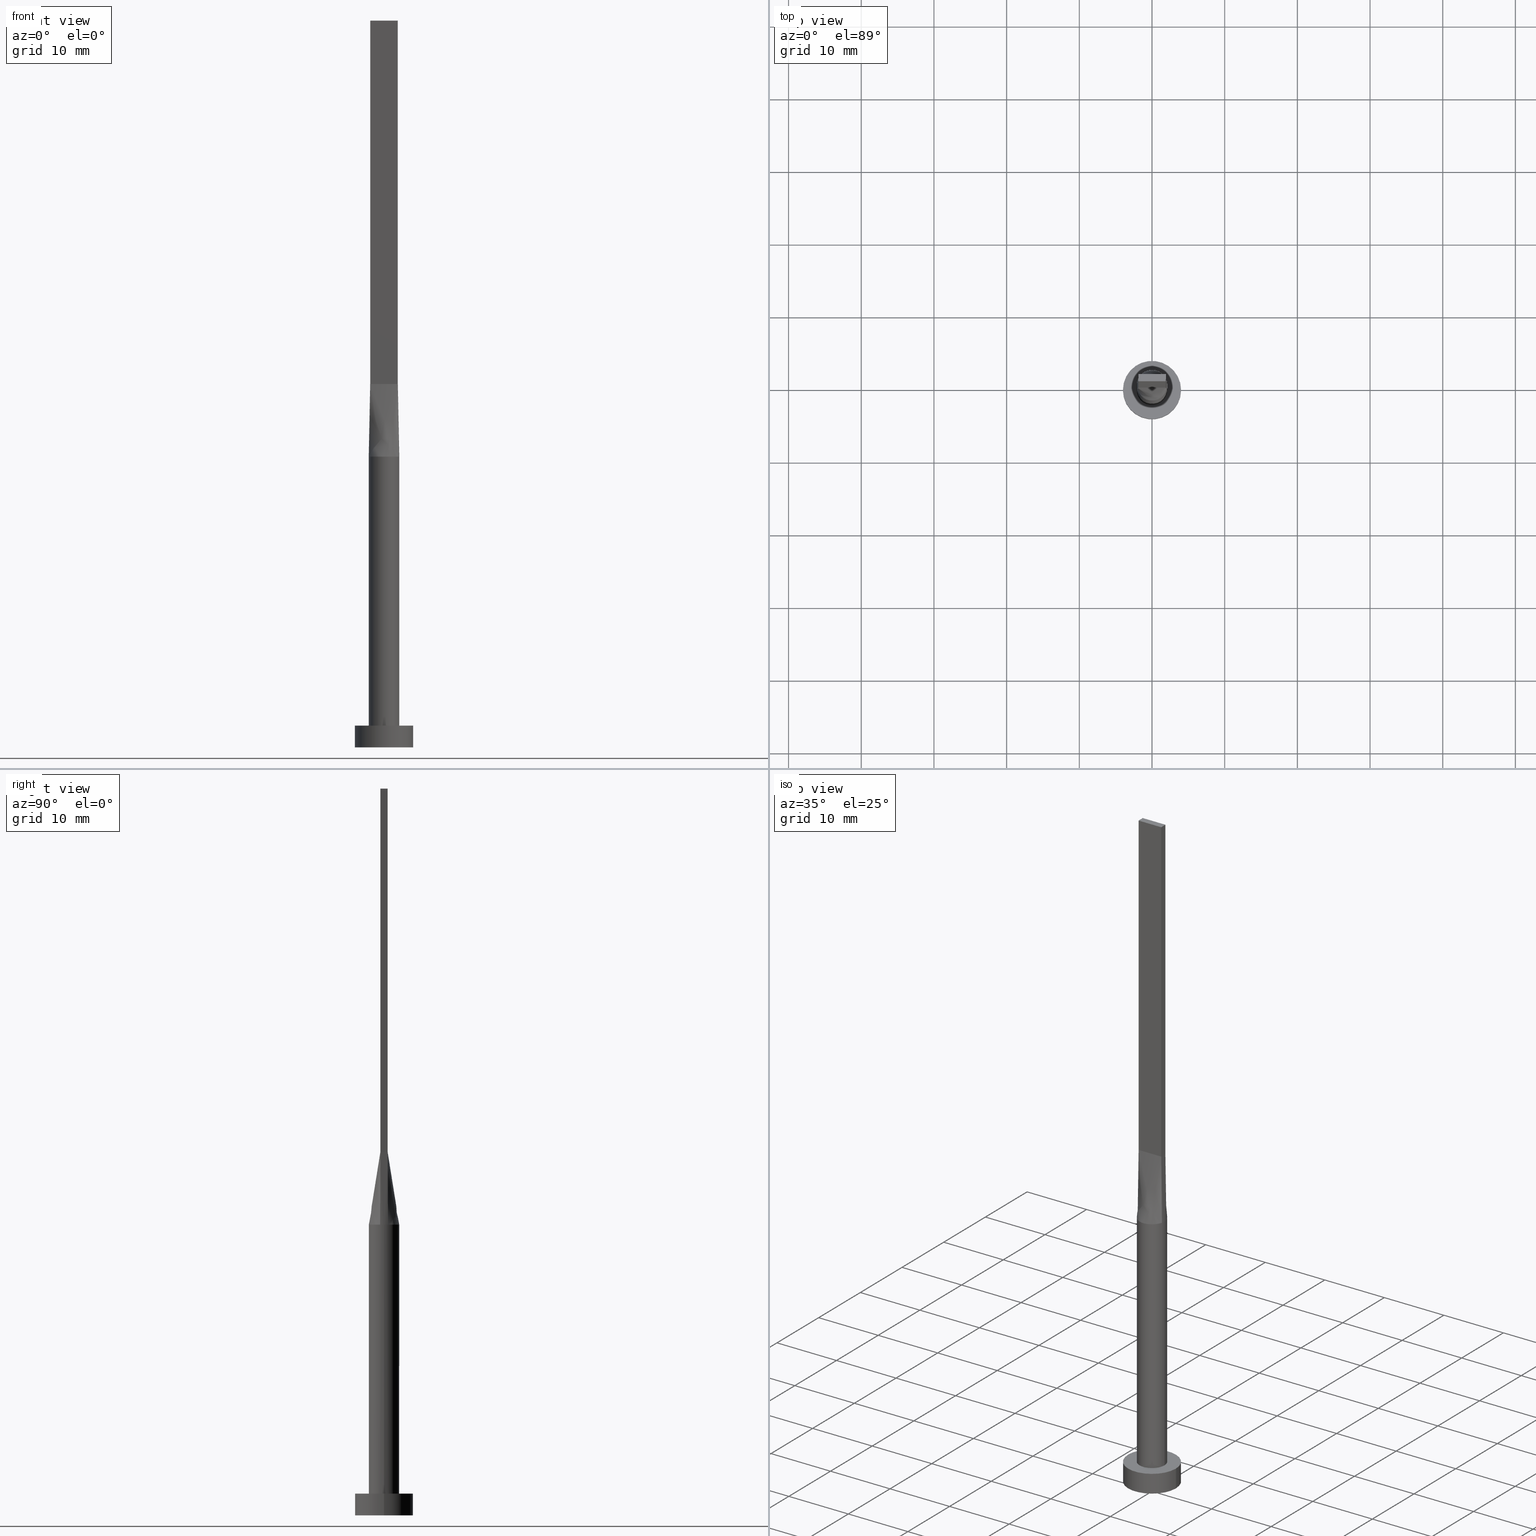
[diagram: canonical four-view strip — front | top / right | iso, engineering-drawing reading convention]
A machine part, canonical four-view strip (front | top / right | iso — engineering-drawing reading convention). The complete STEP part file that produces these views, byte-faithful:
ISO-10303-21;
HEADER;
FILE_DESCRIPTION (( 'STEP AP203' ),
    '1' );
FILE_NAME ('ae48.STEP',
    '2023-02-13T11:25:30',
    ( '' ),
    ( '' ),
    'SwSTEP 2.0',
    'SolidWorks 2019',
    '' );
FILE_SCHEMA (( 'CONFIG_CONTROL_DESIGN' ));
ENDSEC;

DATA;
#1 = VERTEX_POINT ( 'NONE', #328 ) ;
#2 = DIRECTION ( 'NONE',  ( 0.000000000000000000, 0.000000000000000000, 1.000000000000000000 ) ) ;
#3 = VECTOR ( 'NONE', #355, 1000.000000000000000 ) ;
#4 = ADVANCED_FACE ( 'NONE', ( #241 ), #24, .T. ) ;
#5 = PERSON_AND_ORGANIZATION ( #258, #543 ) ;
#6 = CARTESIAN_POINT ( 'NONE',  ( 0.000000000000000000, 0.000000000000000000, 3.000000000000000000 ) ) ;
#7 = VERTEX_POINT ( 'NONE', #194 ) ;
#8 = COORDINATED_UNIVERSAL_TIME_OFFSET ( 1, 0, .AHEAD. ) ;
#9 = CARTESIAN_POINT ( 'NONE',  ( -1.583604922800831760, -1.399063468093435958, 40.00000000000000711 ) ) ;
#10 = CARTESIAN_POINT ( 'NONE',  ( 4.000000000000000000, 4.898587196589412829E-16, 0.000000000000000000 ) ) ;
#11 = ADVANCED_FACE ( 'NONE', ( #208 ), #339, .T. ) ;
#12 = CARTESIAN_POINT ( 'NONE',  ( 0.000000000000000000, 0.000000000000000000, 3.000000000000000000 ) ) ;
#13 = CIRCLE ( 'NONE', #459, 4.000000000000000000 ) ;
#14 = DIRECTION ( 'NONE',  ( -0.000000000000000000, -0.000000000000000000, -1.000000000000000000 ) ) ;
#15 = CARTESIAN_POINT ( 'NONE',  ( 4.000000000000000000, 4.898587196589412829E-16, 3.000000000000000000 ) ) ;
#16 = CARTESIAN_POINT ( 'NONE',  ( 1.021961681204344830, -1.852908961101259910, 39.99999999999999289 ) ) ;
#17 = LINE ( 'NONE', #143, #92 ) ;
#18 = CARTESIAN_POINT ( 'NONE',  ( 0.7916666666666702934, 0.5000000000000002220, 50.00000000000000000 ) ) ;
#19 = CARTESIAN_POINT ( 'NONE',  ( 1.920830191244603746, 0.8725264301372623876, 40.00000000000000000 ) ) ;
#20 = CARTESIAN_POINT ( 'NONE',  ( -1.741666666666667584, -0.4999999999999995559, 50.00000000000000000 ) ) ;
#21 = CARTESIAN_POINT ( 'NONE',  ( 0.2698109971861041290, 2.100000000000000089, 39.99999999999999289 ) ) ;
#22 = CC_DESIGN_APPROVAL ( #209, ( #305 ) ) ;
#23 = ADVANCED_FACE ( 'NONE', ( #115 ), #488, .T. ) ;
#24 = CYLINDRICAL_SURFACE ( 'NONE', #227, 4.000000000000000000 ) ;
#25 = LINE ( 'NONE', #465, #71 ) ;
#26 = VECTOR ( 'NONE', #366, 1000.000000000000000 ) ;
#27 =( LENGTH_UNIT ( ) NAMED_UNIT ( * ) SI_UNIT ( .MILLI., .METRE. ) );
#28 = CARTESIAN_POINT ( 'NONE',  ( 1.899999999999999023, -0.4999999999999997780, 50.00000000000000000 ) ) ;
#29 = ADVANCED_FACE ( 'NONE', ( #266 ), #87, .T. ) ;
#30 = LOCAL_TIME ( 12, 25, 30.00000000000000000, #444 ) ;
#31 = ORIENTED_EDGE ( 'NONE', *, *, #256, .T. ) ;
#32 = LINE ( 'NONE', #300, #100 ) ;
#33 = ORIENTED_EDGE ( 'NONE', *, *, #492, .T. ) ;
#34 = DIRECTION ( 'NONE',  ( 1.000000000000000000, 0.000000000000000000, 0.000000000000000000 ) ) ;
#35 = CARTESIAN_POINT ( 'NONE',  ( 1.899999999999999689, 0.5000000000000002220, 50.00000000000000000 ) ) ;
#36 = ADVANCED_FACE ( 'NONE', ( #486 ), #168, .T. ) ;
#37 = DATE_AND_TIME ( #128, #240 ) ;
#38 = CARTESIAN_POINT ( 'NONE',  ( 1.899999999999999689, -0.1666666666666664354, 50.00000000000000000 ) ) ;
#39 = EDGE_LOOP ( 'NONE', ( #425, #262, #268, #69, #222, #122 ) ) ;
#40 = VECTOR ( 'NONE', #156, 1000.000000000000000 ) ;
#41 = CIRCLE ( 'NONE', #367, 4.000000000000000000 ) ;
#42 = ORIENTED_EDGE ( 'NONE', *, *, #482, .F. ) ;
#43 = CALENDAR_DATE ( 2023, 13, 2 ) ;
#44 = CARTESIAN_POINT ( 'NONE',  ( -1.899999999999999911, -0.4999999999999995559, 100.0000000000000000 ) ) ;
#45 = CARTESIAN_POINT ( 'NONE',  ( -1.583604922800830428, 1.399063468093436402, 40.00000000000000000 ) ) ;
#46 = EDGE_CURVE ( 'NONE', #7, #149, #467, .T. ) ;
#47 = CIRCLE ( 'NONE', #217, 2.100000000000000089 ) ;
#48 = DIRECTION ( 'NONE',  ( -0.000000000000000000, -0.000000000000000000, -1.000000000000000000 ) ) ;
#49 = CARTESIAN_POINT ( 'NONE',  ( -4.000000000000000000, 0.000000000000000000, 3.000000000000000000 ) ) ;
#50 = EDGE_CURVE ( 'NONE', #114, #7, #119, .T. ) ;
#51 = CARTESIAN_POINT ( 'NONE',  ( -1.920830191244604412, -0.8725264301372614995, 40.00000000000000711 ) ) ;
#52 = DIRECTION ( 'NONE',  ( 1.000000000000000000, 0.000000000000000000, 0.000000000000000000 ) ) ;
#53 = CARTESIAN_POINT ( 'NONE',  ( 1.899999999999999689, 0.5000000000000002220, 50.00000000000000000 ) ) ;
#54 = SHAPE_DEFINITION_REPRESENTATION ( #206, #450 ) ;
#55 = CARTESIAN_POINT ( 'NONE',  ( 2.076193315816324603, -0.3621561357411388626, 39.99999999999999289 ) ) ;
#56 = CARTESIAN_POINT ( 'NONE',  ( -2.030856528251558046, -0.5344359284872515214, 40.00000000000000000 ) ) ;
#57 = PLANE ( 'NONE',  #207 ) ;
#58 = CARTESIAN_POINT ( 'NONE',  ( -1.899999999999999911, -0.4999999999999995559, 50.00000000000000000 ) ) ;
#59 = APPROVAL_PERSON_ORGANIZATION ( #396, #311, #104 ) ;
#60 = PLANE ( 'NONE',  #316 ) ;
#61 = VECTOR ( 'NONE', #190, 1000.000000000000114 ) ;
#62 = CARTESIAN_POINT ( 'NONE',  ( 0.1583333333333276638, -0.4999999999999995559, 50.00000000000000000 ) ) ;
#63 = CARTESIAN_POINT ( 'NONE',  ( -1.920830191244604412, 0.8725264301372623876, 40.00000000000000711 ) ) ;
#64 = CARTESIAN_POINT ( 'NONE',  ( 2.100000000000000089, 2.571758278209441957E-16, 40.00000000000000000 ) ) ;
#65 = ORIENTED_EDGE ( 'NONE', *, *, #75, .T. ) ;
#66 = DIRECTION ( 'NONE',  ( -1.000000000000000000, 0.000000000000000000, 0.000000000000000000 ) ) ;
#67 = CARTESIAN_POINT ( 'NONE',  ( 1.235326090059014614, 1.714395692508636770, 40.00000000000002132 ) ) ;
#68 = ADVANCED_FACE ( 'NONE', ( #334 ), #539, .T. ) ;
#69 = ORIENTED_EDGE ( 'NONE', *, *, #131, .F. ) ;
#70 = CARTESIAN_POINT ( 'NONE',  ( -1.899999999999999689, 0.5000000000000002220, 50.00000000000000000 ) ) ;
#71 = VECTOR ( 'NONE', #203, 1000.000000000000000 ) ;
#72 = DIRECTION ( 'NONE',  ( -2.168404344971009361E-16, -1.000000000000000000, 0.000000000000000000 ) ) ;
#73 = PLANE ( 'NONE',  #148 ) ;
#74 = EDGE_LOOP ( 'NONE', ( #415, #272 ) ) ;
#75 = EDGE_CURVE ( 'NONE', #76, #484, #466, .T. ) ;
#76 = VERTEX_POINT ( 'NONE', #455 ) ;
#77 = CARTESIAN_POINT ( 'NONE',  ( -1.965428264125778979, -0.5172179642436255387, 45.00000000000000000 ) ) ;
#78 = CARTESIAN_POINT ( 'NONE',  ( 1.741666666666667362, 0.5000000000000002220, 50.00000000000000711 ) ) ;
#79 = ORIENTED_EDGE ( 'NONE', *, *, #144, .T. ) ;
#80 = ORIENTED_EDGE ( 'NONE', *, *, #383, .T. ) ;
#81 = CARTESIAN_POINT ( 'NONE',  ( 1.899999999999999467, 0.3333333333333335369, 50.00000000000000000 ) ) ;
#82 = VERTEX_POINT ( 'NONE', #58 ) ;
#83 = CARTESIAN_POINT ( 'NONE',  ( 2.030856528251557602, 0.5344359284872527427, 40.00000000000000000 ) ) ;
#84 = APPLICATION_PROTOCOL_DEFINITION ( 'international standard', 'config_control_design', 1994, #275 ) ;
#85 = DIRECTION ( 'NONE',  ( 1.000000000000000000, 0.000000000000000000, -0.000000000000000000 ) ) ;
#86 = VERTEX_POINT ( 'NONE', #210 ) ;
#87 = CYLINDRICAL_SURFACE ( 'NONE', #246, 2.100000000000000089 ) ;
#88 = VERTEX_POINT ( 'NONE', #151 ) ;
#89 = COORDINATED_UNIVERSAL_TIME_OFFSET ( 1, 0, .AHEAD. ) ;
#90 = CARTESIAN_POINT ( 'NONE',  ( 1.719043754744862040, 1.223020672007445464, 40.00000000000001421 ) ) ;
#91 = LINE ( 'NONE', #394, #3 ) ;
#92 = VECTOR ( 'NONE', #576, 1000.000000000000114 ) ;
#93 = ORIENTED_EDGE ( 'NONE', *, *, #75, .F. ) ;
#94 = CC_DESIGN_DATE_AND_TIME_ASSIGNMENT ( #533, #230, ( #305 ) ) ;
#95 = ORIENTED_EDGE ( 'NONE', *, *, #50, .F. ) ;
#96 = CARTESIAN_POINT ( 'NONE',  ( 2.030996101999494652, 0.5344731476277209126, 40.00000000000000000 ) ) ;
#97 = CARTESIAN_POINT ( 'NONE',  ( 0.000000000000000000, 0.000000000000000000, 40.00000000000000000 ) ) ;
#98 = APPROVAL_ROLE ( '' ) ;
#99 = EDGE_CURVE ( 'NONE', #149, #567, #421, .T. ) ;
#100 = VECTOR ( 'NONE', #72, 1000.000000000000000 ) ;
#101 = COORDINATED_UNIVERSAL_TIME_OFFSET ( 1, 0, .AHEAD. ) ;
#102 = CARTESIAN_POINT ( 'NONE',  ( -2.100000000000000977, -0.1811271572287798393, 40.00000000000000000 ) ) ;
#103 = CARTESIAN_POINT ( 'NONE',  ( -2.030856528251557602, 0.5344359284872521876, 40.00000000000000000 ) ) ;
#104 = APPROVAL_ROLE ( '' ) ;
#105 = FACE_OUTER_BOUND ( 'NONE', #501, .T. ) ;
#106 = CARTESIAN_POINT ( 'NONE',  ( -1.899999999999999689, -0.1666666666666662133, 50.00000000000000000 ) ) ;
#107 = CARTESIAN_POINT ( 'NONE',  ( -1.719043754744862484, -1.223020672007444798, 40.00000000000000000 ) ) ;
#108 = CC_DESIGN_APPROVAL ( #311, ( #181 ) ) ;
#109 = CARTESIAN_POINT ( 'NONE',  ( -2.076193315816324603, 0.3621561357411381965, 39.99999999999999289 ) ) ;
#110 = ORIENTED_EDGE ( 'NONE', *, *, #50, .T. ) ;
#111 = CARTESIAN_POINT ( 'NONE',  ( -1.987786580065029174, 0.6981017315960602598, 39.99999999999999289 ) ) ;
#112 = CARTESIAN_POINT ( 'NONE',  ( -1.899999999999999911, -0.4999999999999995559, 50.00000000000000000 ) ) ;
#113 = LINE ( 'NONE', #348, #439 ) ;
#114 = VERTEX_POINT ( 'NONE', #292 ) ;
#115 = FACE_OUTER_BOUND ( 'NONE', #497, .T. ) ;
#116 = DIRECTION ( 'NONE',  ( -0.000000000000000000, -0.000000000000000000, -1.000000000000000000 ) ) ;
#117 = APPROVAL_PERSON_ORGANIZATION ( #430, #209, #221 ) ;
#118 = EDGE_CURVE ( 'NONE', #294, #76, #17, .T. ) ;
#119 = CIRCLE ( 'NONE', #495, 2.100000000000000089 ) ;
#120 = AXIS2_PLACEMENT_3D ( 'NONE', #97, #375, #66 ) ;
#121 = CIRCLE ( 'NONE', #525, 2.100000000000000089 ) ;
#122 = ORIENTED_EDGE ( 'NONE', *, *, #243, .F. ) ;
#123 = CARTESIAN_POINT ( 'NONE',  ( 1.899999999999999689, 0.5000000000000002220, 100.0000000000000000 ) ) ;
#124 = APPLICATION_PROTOCOL_DEFINITION ( 'international standard', 'config_control_design', 1994, #244 ) ;
#125 = ORIENTED_EDGE ( 'NONE', *, *, #327, .T. ) ;
#126 = ORIENTED_EDGE ( 'NONE', *, *, #170, .T. ) ;
#127 = CARTESIAN_POINT ( 'NONE',  ( 1.987786580065029174, 0.6981017315960605929, 40.00000000000000000 ) ) ;
#128 = CALENDAR_DATE ( 2023, 13, 2 ) ;
#129 = ORIENTED_EDGE ( 'NONE', *, *, #500, .T. ) ;
#130 = VECTOR ( 'NONE', #322, 1000.000000000000000 ) ;
#131 = EDGE_CURVE ( 'NONE', #553, #567, #91, .T. ) ;
#132 = PERSON_AND_ORGANIZATION ( #258, #543 ) ;
#133 = DIRECTION ( 'NONE',  ( 0.000000000000000000, 0.000000000000000000, 1.000000000000000000 ) ) ;
#134 = EDGE_LOOP ( 'NONE', ( #390, #395, #93, #343 ) ) ;
#135 = CARTESIAN_POINT ( 'NONE',  ( 1.266666666666669494, 0.5000000000000002220, 50.00000000000000711 ) ) ;
#136 = ORIENTED_EDGE ( 'NONE', *, *, #277, .F. ) ;
#137 = EDGE_CURVE ( 'NONE', #176, #82, #273, .T. ) ;
#138 = DIRECTION ( 'NONE',  ( -0.000000000000000000, -0.000000000000000000, -1.000000000000000000 ) ) ;
#139 = AXIS2_PLACEMENT_3D ( 'NONE', #498, #279, #448 ) ;
#140 = APPROVAL_DATE_TIME ( #536, #311 ) ;
#141 = PLANE ( 'NONE',  #232 ) ;
#142 = CALENDAR_DATE ( 2023, 13, 2 ) ;
#143 = CARTESIAN_POINT ( 'NONE',  ( 1.965428264125778535, 0.5172179642436265379, 45.00000000000000000 ) ) ;
#144 = EDGE_CURVE ( 'NONE', #307, #299, #183, .T. ) ;
#145 = DIRECTION ( 'NONE',  ( 0.000000000000000000, 0.000000000000000000, 1.000000000000000000 ) ) ;
#146 = CARTESIAN_POINT ( 'NONE',  ( 0.000000000000000000, 0.000000000000000000, 3.000000000000000000 ) ) ;
#147 = CARTESIAN_POINT ( 'NONE',  ( -1.108333333333330062, 0.5000000000000002220, 50.00000000000000000 ) ) ;
#148 = AXIS2_PLACEMENT_3D ( 'NONE', #261, #474, #479 ) ;
#149 = VERTEX_POINT ( 'NONE', #276 ) ;
#150 = CARTESIAN_POINT ( 'NONE',  ( -1.021961681204347050, -1.852908961101258578, 39.99999999999998579 ) ) ;
#151 = CARTESIAN_POINT ( 'NONE',  ( -1.899999999999999689, 0.5000000000000002220, 100.0000000000000000 ) ) ;
#152 = CARTESIAN_POINT ( 'NONE',  ( -0.6333333333333288628, 0.5000000000000002220, 50.00000000000000000 ) ) ;
#153 = CARTESIAN_POINT ( 'NONE',  ( -2.076193315816325491, -0.3621561357411375859, 40.00000000000000000 ) ) ;
#154 = CARTESIAN_POINT ( 'NONE',  ( -1.583333333333331927, 0.5000000000000002220, 50.00000000000000000 ) ) ;
#155 = CARTESIAN_POINT ( 'NONE',  ( 2.100000000000000089, -0.1811271572287806442, 40.00000000000000711 ) ) ;
#156 = DIRECTION ( 'NONE',  ( -0.000000000000000000, -0.000000000000000000, -1.000000000000000000 ) ) ;
#157 = CARTESIAN_POINT ( 'NONE',  ( 0.7916666666666622998, -0.4999999999999996669, 50.00000000000000000 ) ) ;
#158 = PRODUCT ( 'ae48', 'ae48', '', ( #182 ) ) ;
#159 = DIRECTION ( 'NONE',  ( 0.01308445504626045038, -0.003443277643752733208, 0.9999084662483913588 ) ) ;
#160 = DIRECTION ( 'NONE',  ( -1.000000000000000000, 0.000000000000000000, 0.000000000000000000 ) ) ;
#161 = ADVANCED_FACE ( 'NONE', ( #535, #528 ), #141, .T. ) ;
#162 = CARTESIAN_POINT ( 'NONE',  ( -1.899999999999999689, 0.5000000000000002220, 50.00000000000000000 ) ) ;
#163 = AXIS2_PLACEMENT_3D ( 'NONE', #380, #513, #253 ) ;
#164 = AXIS2_PLACEMENT_3D ( 'NONE', #12, #547, #426 ) ;
#165 = CARTESIAN_POINT ( 'NONE',  ( -2.100000000000000089, -1.080980291041873360E-16, 40.00000000000000711 ) ) ;
#166 = CARTESIAN_POINT ( 'NONE',  ( 0.000000000000000000, 0.000000000000000000, 100.0000000000000000 ) ) ;
#167 = EDGE_LOOP ( 'NONE', ( #405, #173, #267, #431 ) ) ;
#168 = PLANE ( 'NONE',  #192 ) ;
#169 = PERSON_AND_ORGANIZATION_ROLE ( 'design_owner' ) ;
#170 = EDGE_CURVE ( 'NONE', #462, #515, #180, .T. ) ;
#171 = LOCAL_TIME ( 12, 25, 30.00000000000000000, #313 ) ;
#172 = DIRECTION ( 'NONE',  ( -0.000000000000000000, -0.000000000000000000, -1.000000000000000000 ) ) ;
#173 = ORIENTED_EDGE ( 'NONE', *, *, #537, .F. ) ;
#174 = VECTOR ( 'NONE', #260, 1000.000000000000000 ) ;
#175 = ORIENTED_EDGE ( 'NONE', *, *, #530, .T. ) ;
#176 = VERTEX_POINT ( 'NONE', #315 ) ;
#177 = ADVANCED_FACE ( 'NONE', ( #445 ), #278, .F. ) ;
#178 = CARTESIAN_POINT ( 'NONE',  ( 1.920830191244603302, -0.8725264301372632758, 40.00000000000001421 ) ) ;
#179 = APPROVAL_STATUS ( 'not_yet_approved' ) ;
#180 = LINE ( 'NONE', #317, #560 ) ;
#181 = PRODUCT_DEFINITION_FORMATION_WITH_SPECIFIED_SOURCE ( 'LIBOVOLN�', '', #158, .NOT_KNOWN. ) ;
#182 = MECHANICAL_CONTEXT ( 'NONE', #244, 'mechanical' ) ;
#183 = LINE ( 'NONE', #397, #470 ) ;
#184 = SECURITY_CLASSIFICATION_LEVEL ( 'unclassified' ) ;
#185 = CARTESIAN_POINT ( 'NONE',  ( 0.5389299406762297906, 2.046272663899431077, 40.00000000000000000 ) ) ;
#186 = APPROVAL_STATUS ( 'not_yet_approved' ) ;
#187 = CARTESIAN_POINT ( 'NONE',  ( 1.899999999999999689, -0.3333333333333330928, 50.00000000000000000 ) ) ;
#188 = ADVANCED_FACE ( 'NONE', ( #271 ), #504, .T. ) ;
#189 = LINE ( 'NONE', #238, #345 ) ;
#190 = DIRECTION ( 'NONE',  ( -0.01308445504626047293, 0.003443277643752830786, 0.9999084662483913588 ) ) ;
#191 = CARTESIAN_POINT ( 'NONE',  ( -1.108333333333336501, -0.4999999999999995559, 50.00000000000000000 ) ) ;
#192 = AXIS2_PLACEMENT_3D ( 'NONE', #166, #526, #212 ) ;
#193 = CALENDAR_DATE ( 2023, 13, 2 ) ;
#194 = CARTESIAN_POINT ( 'NONE',  ( 2.100000000000000089, 3.372022381799045987E-17, 40.00000000000000711 ) ) ;
#195 = CARTESIAN_POINT ( 'NONE',  ( -1.899999999999999689, 0.5000000000000002220, 50.00000000000000000 ) ) ;
#196 = DIRECTION ( 'NONE',  ( 5.706327223607920020E-17, 1.000000000000000000, -0.000000000000000000 ) ) ;
#197 = CC_DESIGN_PERSON_AND_ORGANIZATION_ASSIGNMENT ( #223, #388, ( #305 ) ) ;
#198 = CARTESIAN_POINT ( 'NONE',  ( 0.6333333333333286408, -0.4999999999999995559, 50.00000000000000000 ) ) ;
#199 = DIRECTION ( 'NONE',  ( 0.000000000000000000, 0.000000000000000000, 1.000000000000000000 ) ) ;
#200 = FACE_OUTER_BOUND ( 'NONE', #329, .T. ) ;
#201 = CARTESIAN_POINT ( 'NONE',  ( 1.719043754744862040, 1.223020672007445464, 40.00000000000001421 ) ) ;
#202 = EDGE_LOOP ( 'NONE', ( #440, #569, #265, #563 ) ) ;
#203 = DIRECTION ( 'NONE',  ( -1.000000000000000000, 0.000000000000000000, 0.000000000000000000 ) ) ;
#204 = DIRECTION ( 'NONE',  ( 2.168404344971009361E-16, 1.000000000000000000, 0.000000000000000000 ) ) ;
#205 = CARTESIAN_POINT ( 'NONE',  ( -0.2698109971861040179, 2.100000000000000089, 40.00000000000000711 ) ) ;
#206 = PRODUCT_DEFINITION_SHAPE ( 'NONE', 'NONE',  #305 ) ;
#207 = AXIS2_PLACEMENT_3D ( 'NONE', #242, #291, #374 ) ;
#208 = FACE_OUTER_BOUND ( 'NONE', #225, .T. ) ;
#209 = APPROVAL ( #531, 'NEUR�EN�' ) ;
#210 = CARTESIAN_POINT ( 'NONE',  ( -2.031004407172260162, -0.5344754071304557153, 40.00000000000000000 ) ) ;
#211 = ORIENTED_EDGE ( 'NONE', *, *, #318, .T. ) ;
#212 = DIRECTION ( 'NONE',  ( 1.000000000000000000, 0.000000000000000000, -0.000000000000000000 ) ) ;
#213 = LINE ( 'NONE', #340, #280 ) ;
#214 =( NAMED_UNIT ( * ) SI_UNIT ( $, .STERADIAN. ) SOLID_ANGLE_UNIT ( ) );
#215 = DIRECTION ( 'NONE',  ( -0.000000000000000000, -0.000000000000000000, -1.000000000000000000 ) ) ;
#216 = CC_DESIGN_APPROVAL ( #337, ( #424 ) ) ;
#217 = AXIS2_PLACEMENT_3D ( 'NONE', #146, #371, #52 ) ;
#218 = ORIENTED_EDGE ( 'NONE', *, *, #511, .F. ) ;
#219 = CARTESIAN_POINT ( 'NONE',  ( 0.000000000000000000, 0.000000000000000000, 0.000000000000000000 ) ) ;
#220 = PRODUCT_RELATED_PRODUCT_CATEGORY ( 'detail', '', ( #158 ) ) ;
#221 = APPROVAL_ROLE ( '' ) ;
#222 = ORIENTED_EDGE ( 'NONE', *, *, #256, .F. ) ;
#223 = PERSON_AND_ORGANIZATION ( #258, #543 ) ;
#224 = EDGE_LOOP ( 'NONE', ( #411, #79, #505, #443 ) ) ;
#225 = EDGE_LOOP ( 'NONE', ( #436, #512, #211, #175 ) ) ;
#226 = DIRECTION ( 'NONE',  ( 1.000000000000000000, 0.000000000000000000, 0.000000000000000000 ) ) ;
#227 = AXIS2_PLACEMENT_3D ( 'NONE', #377, #14, #160 ) ;
#228 = EDGE_CURVE ( 'NONE', #553, #86, #401, .T. ) ;
#229 = CIRCLE ( 'NONE', #507, 4.000000000000000000 ) ;
#230 = DATE_TIME_ROLE ( 'creation_date' ) ;
#231 = PERSON_AND_ORGANIZATION_ROLE ( 'creator' ) ;
#232 = AXIS2_PLACEMENT_3D ( 'NONE', #6, #2, #489 ) ;
#233 = ADVANCED_FACE ( 'NONE', ( #469 ), #73, .F. ) ;
#234 = PERSON_AND_ORGANIZATION ( #258, #543 ) ;
#235 = DIRECTION ( 'NONE',  ( -0.000000000000000000, -0.000000000000000000, -1.000000000000000000 ) ) ;
#236 = CARTESIAN_POINT ( 'NONE',  ( -1.741666666666665808, 0.5000000000000002220, 50.00000000000000000 ) ) ;
#237 = CARTESIAN_POINT ( 'NONE',  ( -1.987786580065029840, -0.6981017315960599268, 39.99999999999999289 ) ) ;
#238 = CARTESIAN_POINT ( 'NONE',  ( -1.899999999999999689, 0.5000000000000002220, 50.00000000000000000 ) ) ;
#239 = DIRECTION ( 'NONE',  ( -2.168404344971008868E-16, 1.000000000000000000, -0.000000000000000000 ) ) ;
#240 = LOCAL_TIME ( 12, 25, 30.00000000000000000, #89 ) ;
#241 = FACE_OUTER_BOUND ( 'NONE', #224, .T. ) ;
#242 = CARTESIAN_POINT ( 'NONE',  ( 1.899999999999999689, 0.5000000000000002220, 100.0000000000000000 ) ) ;
#243 = EDGE_CURVE ( 'NONE', #294, #509, #285, .T. ) ;
#244 = APPLICATION_CONTEXT ( 'configuration controlled 3d designs of mechanical parts and assemblies' ) ;
#245 = CARTESIAN_POINT ( 'NONE',  ( 0.000000000000000000, 0.000000000000000000, 3.000000000000000000 ) ) ;
#246 = AXIS2_PLACEMENT_3D ( 'NONE', #573, #138, #429 ) ;
#247 = AXIS2_PLACEMENT_3D ( 'NONE', #254, #404, #204 ) ;
#248 = ORIENTED_EDGE ( 'NONE', *, *, #269, .F. ) ;
#249 = CARTESIAN_POINT ( 'NONE',  ( 0.3166666666666613228, -0.4999999999999995559, 50.00000000000000000 ) ) ;
#250 = CARTESIAN_POINT ( 'NONE',  ( 1.583604922800830428, 1.399063468093436624, 40.00000000000000000 ) ) ;
#251 = B_SPLINE_SURFACE_WITH_KNOTS ( 'NONE', 3, 1, ( 
 ( #506, #463 ),
 ( #423, #78 ),
 ( #566, #295 ),
 ( #90, #135 ),
 ( #250, #552 ),
 ( #413, #18 ),
 ( #369, #499 ),
 ( #185, #325 ),
 ( #524, #289 ),
 ( #551, #372 ),
 ( #412, #508 ),
 ( #417, #152 ),
 ( #410, #461 ),
 ( #321, #147 ),
 ( #368, #281 ),
 ( #63, #154 ),
 ( #111, #236 ),
 ( #103, #297 ) ),
 .UNSPECIFIED., .F., .F., .F.,
 ( 4, 2, 2, 2, 2, 2, 2, 2, 4 ),
 ( 2, 2 ),
 ( 0.000000000000000000, 0.1250000000000000278, 0.2500000000000000555, 0.3750000000000001110, 0.5000000000000000000, 0.6250000000000000000, 0.7500000000000000000, 0.8750000000000001110, 1.000000000000000000 ),
 ( 0.000000000000000000, 1.000000000000000000 ),
 .UNSPECIFIED. ) ;
#252 = CARTESIAN_POINT ( 'NONE',  ( -2.100000000000000089, 0.1811271572287804221, 40.00000000000000711 ) ) ;
#253 = DIRECTION ( 'NONE',  ( -1.000000000000000000, 0.000000000000000000, 0.000000000000000000 ) ) ;
#254 = CARTESIAN_POINT ( 'NONE',  ( -1.899999999999999689, 0.5000000000000002220, 100.0000000000000000 ) ) ;
#255 = CARTESIAN_POINT ( 'NONE',  ( 1.021961681204346606, 1.852908961101259244, 40.00000000000000711 ) ) ;
#256 = EDGE_CURVE ( 'NONE', #509, #553, #309, .T. ) ;
#257 = ORIENTED_EDGE ( 'NONE', *, *, #352, .T. ) ;
#258 = PERSON ( 'NEUR�EN�', 'NEUR�EN�', 'NEUR�EN�', ('NEUR�EN�'), ('NEUR�EN�'), ('NEUR�EN�') ) ;
#259 = AXIS2_PLACEMENT_3D ( 'NONE', #332, #284, #503 ) ;
#260 = DIRECTION ( 'NONE',  ( -0.000000000000000000, -0.000000000000000000, -1.000000000000000000 ) ) ;
#261 = CARTESIAN_POINT ( 'NONE',  ( 1.899999999999999023, -0.4999999999999997780, 100.0000000000000000 ) ) ;
#262 = ORIENTED_EDGE ( 'NONE', *, *, #46, .T. ) ;
#263 = DIRECTION ( 'NONE',  ( 0.000000000000000000, 0.000000000000000000, 1.000000000000000000 ) ) ;
#264 = CARTESIAN_POINT ( 'NONE',  ( -2.030856528251557602, 0.5344359284872521876, 40.00000000000000000 ) ) ;
#265 = ORIENTED_EDGE ( 'NONE', *, *, #492, .F. ) ;
#266 = FACE_OUTER_BOUND ( 'NONE', #39, .T. ) ;
#267 = ORIENTED_EDGE ( 'NONE', *, *, #170, .F. ) ;
#268 = ORIENTED_EDGE ( 'NONE', *, *, #99, .T. ) ;
#269 = EDGE_CURVE ( 'NONE', #176, #462, #458, .T. ) ;
#270 = CARTESIAN_POINT ( 'NONE',  ( 1.266666666666663277, -0.4999999999999997780, 50.00000000000000000 ) ) ;
#271 = FACE_OUTER_BOUND ( 'NONE', #351, .T. ) ;
#272 = ORIENTED_EDGE ( 'NONE', *, *, #520, .F. ) ;
#273 = LINE ( 'NONE', #44, #428 ) ;
#274 = CIRCLE ( 'NONE', #164, 4.000000000000000000 ) ;
#275 = APPLICATION_CONTEXT ( 'configuration controlled 3d designs of mechanical parts and assemblies' ) ;
#276 = CARTESIAN_POINT ( 'NONE',  ( 2.100000000000000089, 2.571758278209441957E-16, 3.000000000000000000 ) ) ;
#277 = EDGE_CURVE ( 'NONE', #484, #82, #189, .T. ) ;
#278 = PLANE ( 'NONE',  #580 ) ;
#279 = DIRECTION ( 'NONE',  ( 0.000000000000000000, 0.000000000000000000, 1.000000000000000000 ) ) ;
#280 = VECTOR ( 'NONE', #159, 1000.000000000000114 ) ;
#281 = CARTESIAN_POINT ( 'NONE',  ( -1.266666666666664165, 0.5000000000000002220, 50.00000000000000000 ) ) ;
#282 = CALENDAR_DATE ( 2023, 13, 2 ) ;
#283 = CARTESIAN_POINT ( 'NONE',  ( 0.000000000000000000, 0.000000000000000000, 40.00000000000000000 ) ) ;
#284 = DIRECTION ( 'NONE',  ( 0.000000000000000000, 0.000000000000000000, 1.000000000000000000 ) ) ;
#285 = B_SPLINE_CURVE_WITH_KNOTS ( 'NONE', 3,
 ( #427, #127, #19, #201, #298, #67, #255, #418, #21, #205, #379, #562, #442, #45, #331, #407, #402, #362 ),
 .UNSPECIFIED., .F., .F.,
 ( 4, 2, 2, 2, 2, 2, 2, 2, 4 ),
 ( 0.000000000000000000, 0.1250000000000000278, 0.2500000000000000555, 0.3750000000000001110, 0.5000000000000000000, 0.6250000000000000000, 0.7500000000000000000, 0.8750000000000001110, 1.000000000000000000 ),
 .UNSPECIFIED. ) ;
#286 = DIRECTION ( 'NONE',  ( -1.000000000000000000, 5.706327223607920020E-17, 0.000000000000000000 ) ) ;
#287 = EDGE_CURVE ( 'NONE', #82, #477, #490, .T. ) ;
#288 = CARTESIAN_POINT ( 'NONE',  ( -0.6333333333333375226, -0.4999999999999995559, 50.00000000000000000 ) ) ;
#289 = CARTESIAN_POINT ( 'NONE',  ( 0.1583333333333381276, 0.5000000000000002220, 50.00000000000000000 ) ) ;
#290 = CARTESIAN_POINT ( 'NONE',  ( -0.1583333333333388215, -0.4999999999999995559, 50.00000000000000711 ) ) ;
#291 = DIRECTION ( 'NONE',  ( 0.000000000000000000, -1.000000000000000000, 0.000000000000000000 ) ) ;
#292 = CARTESIAN_POINT ( 'NONE',  ( 2.031027953490633031, -0.5344816358097418396, 40.00000000000000000 ) ) ;
#293 = CARTESIAN_POINT ( 'NONE',  ( -1.899999999999999467, 0.3333333333333336479, 50.00000000000000000 ) ) ;
#294 = VERTEX_POINT ( 'NONE', #96 ) ;
#295 = CARTESIAN_POINT ( 'NONE',  ( 1.583333333333334814, 0.5000000000000002220, 50.00000000000000711 ) ) ;
#296 = CARTESIAN_POINT ( 'NONE',  ( -2.030856528251558046, -0.5344359284872516325, 40.00000000000000000 ) ) ;
#297 = CARTESIAN_POINT ( 'NONE',  ( -1.899999999999999689, 0.5000000000000002220, 50.00000000000000000 ) ) ;
#298 = CARTESIAN_POINT ( 'NONE',  ( 1.583604922800830428, 1.399063468093436624, 40.00000000000000000 ) ) ;
#299 = VERTEX_POINT ( 'NONE', #10 ) ;
#300 = CARTESIAN_POINT ( 'NONE',  ( -1.899999999999999689, 0.5000000000000002220, 100.0000000000000000 ) ) ;
#301 = EDGE_CURVE ( 'NONE', #86, #114, #409, .T. ) ;
#302 = CARTESIAN_POINT ( 'NONE',  ( -1.899999999999999911, -0.4999999999999995559, 50.00000000000000000 ) ) ;
#303 = ORIENTED_EDGE ( 'NONE', *, *, #352, .F. ) ;
#304 = CARTESIAN_POINT ( 'NONE',  ( -1.899999999999999689, 0.5000000000000002220, 100.0000000000000000 ) ) ;
#305 = PRODUCT_DEFINITION ( 'NEZN�M�', '', #181, #564 ) ;
#306 = ORIENTED_EDGE ( 'NONE', *, *, #287, .F. ) ;
#307 = VERTEX_POINT ( 'NONE', #15 ) ;
#308 = DIRECTION ( 'NONE',  ( 1.000000000000000000, 0.000000000000000000, 0.000000000000000000 ) ) ;
#309 = CIRCLE ( 'NONE', #323, 2.100000000000000089 ) ;
#310 = ORIENTED_EDGE ( 'NONE', *, *, #548, .F. ) ;
#311 = APPROVAL ( #179, 'NEUR�EN�' ) ;
#312 = CARTESIAN_POINT ( 'NONE',  ( 1.719043754744861374, -1.223020672007445908, 40.00000000000001421 ) ) ;
#313 = COORDINATED_UNIVERSAL_TIME_OFFSET ( 1, 0, .AHEAD. ) ;
#314 = ORIENTED_EDGE ( 'NONE', *, *, #131, .T. ) ;
#315 = CARTESIAN_POINT ( 'NONE',  ( -1.899999999999999911, -0.4999999999999995559, 100.0000000000000000 ) ) ;
#316 = AXIS2_PLACEMENT_3D ( 'NONE', #464, #196, #286 ) ;
#317 = CARTESIAN_POINT ( 'NONE',  ( 1.899999999999999023, -0.4999999999999997780, 100.0000000000000000 ) ) ;
#318 = EDGE_CURVE ( 'NONE', #381, #1, #542, .T. ) ;
#319 = DATE_AND_TIME ( #142, #437 ) ;
#320 = DIRECTION ( 'NONE',  ( -2.168404344971009361E-16, -1.000000000000000000, 0.000000000000000000 ) ) ;
#321 = CARTESIAN_POINT ( 'NONE',  ( -1.583604922800830428, 1.399063468093436402, 40.00000000000000000 ) ) ;
#322 = DIRECTION ( 'NONE',  ( 1.000000000000000000, -5.706327223607920020E-17, 0.000000000000000000 ) ) ;
#323 = AXIS2_PLACEMENT_3D ( 'NONE', #283, #199, #550 ) ;
#324 = DIRECTION ( 'NONE',  ( 1.000000000000000000, 0.000000000000000000, 0.000000000000000000 ) ) ;
#325 = CARTESIAN_POINT ( 'NONE',  ( 0.3166666666666711483, 0.5000000000000002220, 50.00000000000000000 ) ) ;
#326 = APPROVAL_DATE_TIME ( #540, #337 ) ;
#327 = EDGE_CURVE ( 'NONE', #567, #149, #47, .T. ) ;
#328 = CARTESIAN_POINT ( 'NONE',  ( -4.000000000000000000, 0.000000000000000000, 0.000000000000000000 ) ) ;
#329 = EDGE_LOOP ( 'NONE', ( #384, #95, #487, #347, #314, #125 ) ) ;
#330 = CARTESIAN_POINT ( 'NONE',  ( -0.2698109971861053502, -2.100000000000000089, 40.00000000000001421 ) ) ;
#331 = CARTESIAN_POINT ( 'NONE',  ( -1.719043754744861596, 1.223020672007445242, 39.99999999999999289 ) ) ;
#332 = CARTESIAN_POINT ( 'NONE',  ( 0.000000000000000000, 0.000000000000000000, 3.000000000000000000 ) ) ;
#333 = PLANE ( 'NONE',  #247 ) ;
#334 = FACE_OUTER_BOUND ( 'NONE', #475, .T. ) ;
#335 = VECTOR ( 'NONE', #546, 1000.000000000000000 ) ;
#336 = ORIENTED_EDGE ( 'NONE', *, *, #422, .F. ) ;
#337 = APPROVAL ( #186, 'NEUR�EN�' ) ;
#338 = CARTESIAN_POINT ( 'NONE',  ( 0.000000000000000000, 0.000000000000000000, 0.000000000000000000 ) ) ;
#339 = CYLINDRICAL_SURFACE ( 'NONE', #163, 4.000000000000000000 ) ;
#340 = CARTESIAN_POINT ( 'NONE',  ( -1.965428264125778535, 0.5172179642436262048, 45.00000000000000000 ) ) ;
#341 = DIRECTION ( 'NONE',  ( 1.000000000000000000, 4.440892098500626951E-15, 0.000000000000000000 ) ) ;
#342 =( NAMED_UNIT ( * ) PLANE_ANGLE_UNIT ( ) SI_UNIT ( $, .RADIAN. ) );
#343 = ORIENTED_EDGE ( 'NONE', *, *, #118, .F. ) ;
#344 = DIRECTION ( 'NONE',  ( -0.01308445504626047293, -0.003443277643752733208, -0.9999084662483913588 ) ) ;
#345 = VECTOR ( 'NONE', #320, 1000.000000000000000 ) ;
#346 = ADVANCED_FACE ( 'NONE', ( #105 ), #57, .F. ) ;
#347 = ORIENTED_EDGE ( 'NONE', *, *, #228, .F. ) ;
#348 = CARTESIAN_POINT ( 'NONE',  ( 1.899999999999999689, 0.5000000000000002220, 100.0000000000000000 ) ) ;
#349 = ORIENTED_EDGE ( 'NONE', *, *, #327, .F. ) ;
#350 = CARTESIAN_POINT ( 'NONE',  ( 2.100000000000000089, 0.1811271572287802556, 40.00000000000000000 ) ) ;
#351 = EDGE_LOOP ( 'NONE', ( #110, #365, #471, #485, #336 ) ) ;
#352 = EDGE_CURVE ( 'NONE', #515, #88, #25, .T. ) ;
#353 = MANIFOLD_SOLID_BREP ( 'P�idat vysunut�m5', #408 ) ;
#354 = CARTESIAN_POINT ( 'NONE',  ( 1.108333333333329618, -0.4999999999999997780, 50.00000000000000000 ) ) ;
#355 = DIRECTION ( 'NONE',  ( -0.000000000000000000, -0.000000000000000000, -1.000000000000000000 ) ) ;
#356 = ORIENTED_EDGE ( 'NONE', *, *, #99, .F. ) ;
#357 = CARTESIAN_POINT ( 'NONE',  ( -2.100000000000000089, 0.000000000000000000, 3.000000000000000000 ) ) ;
#358 = EDGE_LOOP ( 'NONE', ( #519, #80 ) ) ;
#359 = DIRECTION ( 'NONE',  ( 1.000000000000000000, 0.000000000000000000, 0.000000000000000000 ) ) ;
#360 =( GEOMETRIC_REPRESENTATION_CONTEXT ( 3 ) GLOBAL_UNCERTAINTY_ASSIGNED_CONTEXT ( ( #568 ) ) GLOBAL_UNIT_ASSIGNED_CONTEXT ( ( #27, #342, #214 ) ) REPRESENTATION_CONTEXT ( 'NONE', 'WORKASPACE' ) );
#361 = ADVANCED_FACE ( 'NONE', ( #518 ), #251, .T. ) ;
#362 = CARTESIAN_POINT ( 'NONE',  ( -2.031019593402089818, 0.5344793603115657321, 40.00000000000000000 ) ) ;
#363 = LINE ( 'NONE', #53, #517 ) ;
#364 = ORIENTED_EDGE ( 'NONE', *, *, #422, .T. ) ;
#365 = ORIENTED_EDGE ( 'NONE', *, *, #476, .T. ) ;
#366 = DIRECTION ( 'NONE',  ( 1.000000000000000000, -5.706327223607918787E-17, 0.000000000000000000 ) ) ;
#367 = AXIS2_PLACEMENT_3D ( 'NONE', #338, #570, #510 ) ;
#368 = CARTESIAN_POINT ( 'NONE',  ( -1.719043754744861596, 1.223020672007445242, 39.99999999999999289 ) ) ;
#369 = CARTESIAN_POINT ( 'NONE',  ( 1.021961681204346606, 1.852908961101259244, 40.00000000000000711 ) ) ;
#370 = CARTESIAN_POINT ( 'NONE',  ( -1.583333333333335036, -0.4999999999999995559, 50.00000000000000000 ) ) ;
#371 = DIRECTION ( 'NONE',  ( 0.000000000000000000, 0.000000000000000000, 1.000000000000000000 ) ) ;
#372 = CARTESIAN_POINT ( 'NONE',  ( -0.1583333333333283577, 0.5000000000000002220, 50.00000000000000000 ) ) ;
#373 = CARTESIAN_POINT ( 'NONE',  ( 1.235326090059013504, -1.714395692508636548, 39.99999999999999289 ) ) ;
#374 = DIRECTION ( 'NONE',  ( 0.000000000000000000, -0.000000000000000000, -1.000000000000000000 ) ) ;
#375 = DIRECTION ( 'NONE',  ( -0.000000000000000000, -0.000000000000000000, -1.000000000000000000 ) ) ;
#376 = ADVANCED_FACE ( 'NONE', ( #456 ), #60, .F. ) ;
#377 = CARTESIAN_POINT ( 'NONE',  ( 0.000000000000000000, 0.000000000000000000, 3.000000000000000000 ) ) ;
#378 = CARTESIAN_POINT ( 'NONE',  ( -2.031019593402089818, 0.5344793603115657321, 40.00000000000000000 ) ) ;
#379 = CARTESIAN_POINT ( 'NONE',  ( -0.5389299406762299016, 2.046272663899431965, 39.99999999999999289 ) ) ;
#380 = CARTESIAN_POINT ( 'NONE',  ( 0.000000000000000000, 0.000000000000000000, 3.000000000000000000 ) ) ;
#381 = VERTEX_POINT ( 'NONE', #491 ) ;
#382 = LINE ( 'NONE', #77, #392 ) ;
#383 = EDGE_CURVE ( 'NONE', #307, #381, #13, .T. ) ;
#384 = ORIENTED_EDGE ( 'NONE', *, *, #46, .F. ) ;
#385 = EDGE_LOOP ( 'NONE', ( #529, #218, #248, #416 ) ) ;
#386 = ORIENTED_EDGE ( 'NONE', *, *, #228, .T. ) ;
#387 = CARTESIAN_POINT ( 'NONE',  ( 1.583604922800829984, -1.399063468093436846, 40.00000000000000000 ) ) ;
#388 = PERSON_AND_ORGANIZATION_ROLE ( 'creator' ) ;
#389 = ADVANCED_FACE ( 'NONE', ( #200 ), #452, .T. ) ;
#390 = ORIENTED_EDGE ( 'NONE', *, *, #243, .T. ) ;
#391 = CARTESIAN_POINT ( 'NONE',  ( 1.987786580065029396, -0.6981017315960611480, 40.00000000000000711 ) ) ;
#392 = VECTOR ( 'NONE', #344, 1000.000000000000114 ) ;
#393 = CARTESIAN_POINT ( 'NONE',  ( 0.000000000000000000, 0.000000000000000000, 0.000000000000000000 ) ) ;
#394 = CARTESIAN_POINT ( 'NONE',  ( -2.100000000000000089, 0.000000000000000000, 40.00000000000000000 ) ) ;
#395 = ORIENTED_EDGE ( 'NONE', *, *, #482, .T. ) ;
#396 = PERSON_AND_ORGANIZATION ( #258, #543 ) ;
#397 = CARTESIAN_POINT ( 'NONE',  ( 4.000000000000000000, 4.898587196589412829E-16, 3.000000000000000000 ) ) ;
#398 = ADVANCED_FACE ( 'NONE', ( #556 ), #333, .F. ) ;
#399 = AXIS2_PLACEMENT_3D ( 'NONE', #393, #527, #359 ) ;
#400 = PERSON_AND_ORGANIZATION_ROLE ( 'design_supplier' ) ;
#401 = CIRCLE ( 'NONE', #571, 2.100000000000000089 ) ;
#402 = CARTESIAN_POINT ( 'NONE',  ( -1.987786580065029174, 0.6981017315960602598, 39.99999999999999289 ) ) ;
#403 = CC_DESIGN_PERSON_AND_ORGANIZATION_ASSIGNMENT ( #132, #169, ( #158 ) ) ;
#404 = DIRECTION ( 'NONE',  ( 1.000000000000000000, -2.168404344971009361E-16, 0.000000000000000000 ) ) ;
#405 = ORIENTED_EDGE ( 'NONE', *, *, #441, .T. ) ;
#406 = CARTESIAN_POINT ( 'NONE',  ( -1.266666666666669494, -0.4999999999999995559, 50.00000000000000000 ) ) ;
#407 = CARTESIAN_POINT ( 'NONE',  ( -1.920830191244604412, 0.8725264301372623876, 40.00000000000000711 ) ) ;
#408 = CLOSED_SHELL ( 'NONE', ( #29, #4, #11, #161, #177, #389, #23, #188, #68, #361, #346, #398, #376, #233, #36 ) ) ;
#409 = CIRCLE ( 'NONE', #139, 2.100000000000000089 ) ;
#410 = CARTESIAN_POINT ( 'NONE',  ( -1.235326090059014836, 1.714395692508636326, 40.00000000000000000 ) ) ;
#411 = ORIENTED_EDGE ( 'NONE', *, *, #383, .F. ) ;
#412 = CARTESIAN_POINT ( 'NONE',  ( -0.5389299406762299016, 2.046272663899431965, 39.99999999999999289 ) ) ;
#413 = CARTESIAN_POINT ( 'NONE',  ( 1.235326090059014614, 1.714395692508636770, 40.00000000000002132 ) ) ;
#414 = CC_DESIGN_PERSON_AND_ORGANIZATION_ASSIGNMENT ( #541, #400, ( #181 ) ) ;
#415 = ORIENTED_EDGE ( 'NONE', *, *, #530, .F. ) ;
#416 = ORIENTED_EDGE ( 'NONE', *, *, #137, .T. ) ;
#417 = CARTESIAN_POINT ( 'NONE',  ( -1.021961681204346384, 1.852908961101259022, 39.99999999999998579 ) ) ;
#418 = CARTESIAN_POINT ( 'NONE',  ( 0.5389299406762297906, 2.046272663899431077, 40.00000000000000000 ) ) ;
#419 = LOCAL_TIME ( 12, 25, 30.00000000000000000, #8 ) ;
#420 = CARTESIAN_POINT ( 'NONE',  ( 1.899999999999999023, -0.4999999999999997780, 100.0000000000000000 ) ) ;
#421 = CIRCLE ( 'NONE', #259, 2.100000000000000089 ) ;
#422 = EDGE_CURVE ( 'NONE', #114, #477, #538, .T. ) ;
#423 = CARTESIAN_POINT ( 'NONE',  ( 1.987786580065029174, 0.6981017315960605929, 40.00000000000000000 ) ) ;
#424 = SECURITY_CLASSIFICATION ( '', '', #184 ) ;
#425 = ORIENTED_EDGE ( 'NONE', *, *, #476, .F. ) ;
#426 = DIRECTION ( 'NONE',  ( 1.000000000000000000, 0.000000000000000000, 0.000000000000000000 ) ) ;
#427 = CARTESIAN_POINT ( 'NONE',  ( 2.030996101999494652, 0.5344731476277209126, 40.00000000000000000 ) ) ;
#428 = VECTOR ( 'NONE', #172, 1000.000000000000000 ) ;
#429 = DIRECTION ( 'NONE',  ( -1.000000000000000000, 0.000000000000000000, 0.000000000000000000 ) ) ;
#430 = PERSON_AND_ORGANIZATION ( #258, #543 ) ;
#431 = ORIENTED_EDGE ( 'NONE', *, *, #511, .T. ) ;
#432 = CC_DESIGN_DATE_AND_TIME_ASSIGNMENT ( #319, #446, ( #424 ) ) ;
#433 = EDGE_LOOP ( 'NONE', ( #349, #356 ) ) ;
#434 = DIRECTION ( 'NONE',  ( 0.000000000000000000, 0.000000000000000000, 1.000000000000000000 ) ) ;
#435 = CARTESIAN_POINT ( 'NONE',  ( 1.583333333333331039, -0.4999999999999997780, 50.00000000000000000 ) ) ;
#436 = ORIENTED_EDGE ( 'NONE', *, *, #144, .F. ) ;
#437 = LOCAL_TIME ( 12, 25, 30.00000000000000000, #101 ) ;
#438 = VECTOR ( 'NONE', #215, 1000.000000000000000 ) ;
#439 = VECTOR ( 'NONE', #116, 1000.000000000000000 ) ;
#440 = ORIENTED_EDGE ( 'NONE', *, *, #277, .T. ) ;
#441 = EDGE_CURVE ( 'NONE', #477, #76, #363, .T. ) ;
#442 = CARTESIAN_POINT ( 'NONE',  ( -1.235326090059014836, 1.714395692508636326, 40.00000000000000000 ) ) ;
#443 = ORIENTED_EDGE ( 'NONE', *, *, #318, .F. ) ;
#444 = COORDINATED_UNIVERSAL_TIME_OFFSET ( 1, 0, .AHEAD. ) ;
#445 = FACE_OUTER_BOUND ( 'NONE', #74, .T. ) ;
#446 = DATE_TIME_ROLE ( 'classification_date' ) ;
#447 = VECTOR ( 'NONE', #235, 1000.000000000000000 ) ;
#448 = DIRECTION ( 'NONE',  ( 1.000000000000000000, 0.000000000000000000, 0.000000000000000000 ) ) ;
#449 = CARTESIAN_POINT ( 'NONE',  ( 1.965428264125778091, -0.5172179642436263158, 45.00000000000000000 ) ) ;
#450 = ADVANCED_BREP_SHAPE_REPRESENTATION ( 'ae48', ( #353, #399 ), #360 ) ;
#451 = CARTESIAN_POINT ( 'NONE',  ( -1.899999999999999689, -0.3333333333333328152, 50.00000000000000000 ) ) ;
#452 = CYLINDRICAL_SURFACE ( 'NONE', #120, 2.100000000000000089 ) ;
#453 = CARTESIAN_POINT ( 'NONE',  ( -0.5389299406762309008, -2.046272663899432409, 40.00000000000000711 ) ) ;
#454 = CARTESIAN_POINT ( 'NONE',  ( -1.899999999999999911, -0.4999999999999995559, 100.0000000000000000 ) ) ;
#455 = CARTESIAN_POINT ( 'NONE',  ( 1.899999999999999689, 0.5000000000000002220, 50.00000000000000000 ) ) ;
#456 = FACE_OUTER_BOUND ( 'NONE', #385, .T. ) ;
#457 = CARTESIAN_POINT ( 'NONE',  ( 0.2698109971861026857, -2.100000000000000977, 40.00000000000001421 ) ) ;
#458 = LINE ( 'NONE', #454, #130 ) ;
#459 = AXIS2_PLACEMENT_3D ( 'NONE', #245, #145, #324 ) ;
#460 = EDGE_CURVE ( 'NONE', #381, #307, #274, .T. ) ;
#461 = CARTESIAN_POINT ( 'NONE',  ( -0.7916666666666625218, 0.5000000000000002220, 50.00000000000000000 ) ) ;
#462 = VERTEX_POINT ( 'NONE', #420 ) ;
#463 = CARTESIAN_POINT ( 'NONE',  ( 1.899999999999999689, 0.5000000000000002220, 50.00000000000000000 ) ) ;
#464 = CARTESIAN_POINT ( 'NONE',  ( -1.899999999999999911, -0.4999999999999995559, 100.0000000000000000 ) ) ;
#465 = CARTESIAN_POINT ( 'NONE',  ( 1.899999999999999689, 0.5000000000000002220, 100.0000000000000000 ) ) ;
#466 = LINE ( 'NONE', #195, #335 ) ;
#467 = LINE ( 'NONE', #64, #40 ) ;
#468 = LINE ( 'NONE', #304, #438 ) ;
#469 = FACE_OUTER_BOUND ( 'NONE', #167, .T. ) ;
#470 = VECTOR ( 'NONE', #48, 1000.000000000000000 ) ;
#471 = ORIENTED_EDGE ( 'NONE', *, *, #118, .T. ) ;
#472 = CARTESIAN_POINT ( 'NONE',  ( 0.000000000000000000, 0.000000000000000000, 40.00000000000000000 ) ) ;
#473 = ORIENTED_EDGE ( 'NONE', *, *, #500, .F. ) ;
#474 = DIRECTION ( 'NONE',  ( -1.000000000000000000, 6.505213034913026604E-16, 0.000000000000000000 ) ) ;
#475 = EDGE_LOOP ( 'NONE', ( #31, #386, #473, #136, #42 ) ) ;
#476 = EDGE_CURVE ( 'NONE', #7, #294, #121, .T. ) ;
#477 = VERTEX_POINT ( 'NONE', #28 ) ;
#478 = CARTESIAN_POINT ( 'NONE',  ( 1.899999999999999467, 0.1666666666666668795, 50.00000000000000000 ) ) ;
#479 = DIRECTION ( 'NONE',  ( -6.505213034913026604E-16, -1.000000000000000000, 0.000000000000000000 ) ) ;
#480 = CARTESIAN_POINT ( 'NONE',  ( 0.000000000000000000, 0.000000000000000000, 0.000000000000000000 ) ) ;
#481 = ORIENTED_EDGE ( 'NONE', *, *, #269, .T. ) ;
#482 = EDGE_CURVE ( 'NONE', #509, #484, #213, .T. ) ;
#483 = CARTESIAN_POINT ( 'NONE',  ( 2.030856528251557158, -0.5344359284872526317, 40.00000000000000000 ) ) ;
#484 = VERTEX_POINT ( 'NONE', #162 ) ;
#485 = ORIENTED_EDGE ( 'NONE', *, *, #441, .F. ) ;
#486 = FACE_OUTER_BOUND ( 'NONE', #523, .T. ) ;
#487 = ORIENTED_EDGE ( 'NONE', *, *, #301, .F. ) ;
#488 = B_SPLINE_SURFACE_WITH_KNOTS ( 'NONE', 3, 1, ( 
 ( #56, #302 ),
 ( #237, #20 ),
 ( #51, #370 ),
 ( #107, #406 ),
 ( #9, #191 ),
 ( #555, #545 ),
 ( #150, #288 ),
 ( #453, #549 ),
 ( #330, #290 ),
 ( #457, #62 ),
 ( #558, #249 ),
 ( #16, #198 ),
 ( #373, #157 ),
 ( #387, #354 ),
 ( #312, #270 ),
 ( #178, #435 ),
 ( #391, #581 ),
 ( #483, #532 ) ),
 .UNSPECIFIED., .F., .F., .F.,
 ( 4, 2, 2, 2, 2, 2, 2, 2, 4 ),
 ( 2, 2 ),
 ( 0.000000000000000000, 0.1250000000000000555, 0.2500000000000001665, 0.3750000000000002776, 0.5000000000000003331, 0.6250000000000002220, 0.7500000000000002220, 0.8750000000000001110, 1.000000000000000000 ),
 ( 0.000000000000000000, 1.000000000000000000 ),
 .UNSPECIFIED. ) ;
#489 = DIRECTION ( 'NONE',  ( 1.000000000000000000, 0.000000000000000000, -0.000000000000000000 ) ) ;
#490 = LINE ( 'NONE', #502, #26 ) ;
#491 = CARTESIAN_POINT ( 'NONE',  ( -4.000000000000000000, 0.000000000000000000, 3.000000000000000000 ) ) ;
#492 = EDGE_CURVE ( 'NONE', #88, #176, #32, .T. ) ;
#493 = CC_DESIGN_SECURITY_CLASSIFICATION ( #424, ( #181 ) ) ;
#494 = PERSON_AND_ORGANIZATION_ROLE ( 'classification_officer' ) ;
#495 = AXIS2_PLACEMENT_3D ( 'NONE', #565, #263, #341 ) ;
#496 = CARTESIAN_POINT ( 'NONE',  ( 1.899999999999999911, -0.4999999999999997780, 50.00000000000000000 ) ) ;
#497 = EDGE_LOOP ( 'NONE', ( #577, #364, #306, #129 ) ) ;
#498 = CARTESIAN_POINT ( 'NONE',  ( 0.000000000000000000, 0.000000000000000000, 40.00000000000000000 ) ) ;
#499 = CARTESIAN_POINT ( 'NONE',  ( 0.6333333333333373005, 0.5000000000000002220, 50.00000000000000000 ) ) ;
#500 = EDGE_CURVE ( 'NONE', #82, #86, #382, .T. ) ;
#501 = EDGE_LOOP ( 'NONE', ( #65, #310, #303, #574 ) ) ;
#502 = CARTESIAN_POINT ( 'NONE',  ( -1.899999999999999911, -0.4999999999999995559, 50.00000000000000000 ) ) ;
#503 = DIRECTION ( 'NONE',  ( 1.000000000000000000, 0.000000000000000000, 0.000000000000000000 ) ) ;
#504 = B_SPLINE_SURFACE_WITH_KNOTS ( 'NONE', 3, 1, ( 
 ( #554, #496 ),
 ( #55, #187 ),
 ( #155, #38 ),
 ( #350, #478 ),
 ( #522, #81 ),
 ( #83, #35 ) ),
 .UNSPECIFIED., .F., .F., .F.,
 ( 4, 2, 4 ),
 ( 2, 2 ),
 ( 0.000000000000000000, 0.5000000000000000000, 1.000000000000000000 ),
 ( 0.000000000000000000, 1.000000000000000000 ),
 .UNSPECIFIED. ) ;
#505 = ORIENTED_EDGE ( 'NONE', *, *, #520, .T. ) ;
#506 = CARTESIAN_POINT ( 'NONE',  ( 2.030856528251557602, 0.5344359284872521876, 40.00000000000000000 ) ) ;
#507 = AXIS2_PLACEMENT_3D ( 'NONE', #219, #521, #308 ) ;
#508 = CARTESIAN_POINT ( 'NONE',  ( -0.3166666666666618224, 0.5000000000000002220, 50.00000000000000000 ) ) ;
#509 = VERTEX_POINT ( 'NONE', #378 ) ;
#510 = DIRECTION ( 'NONE',  ( 1.000000000000000000, 0.000000000000000000, 0.000000000000000000 ) ) ;
#511 = EDGE_CURVE ( 'NONE', #462, #477, #561, .T. ) ;
#512 = ORIENTED_EDGE ( 'NONE', *, *, #460, .F. ) ;
#513 = DIRECTION ( 'NONE',  ( -0.000000000000000000, -0.000000000000000000, -1.000000000000000000 ) ) ;
#514 = CARTESIAN_POINT ( 'NONE',  ( 1.899999999999999023, -0.4999999999999997780, 100.0000000000000000 ) ) ;
#515 = VERTEX_POINT ( 'NONE', #123 ) ;
#516 = DIRECTION ( 'NONE',  ( 0.000000000000000000, 0.000000000000000000, 1.000000000000000000 ) ) ;
#517 = VECTOR ( 'NONE', #239, 1000.000000000000000 ) ;
#518 = FACE_OUTER_BOUND ( 'NONE', #134, .T. ) ;
#519 = ORIENTED_EDGE ( 'NONE', *, *, #460, .T. ) ;
#520 = EDGE_CURVE ( 'NONE', #299, #1, #229, .T. ) ;
#521 = DIRECTION ( 'NONE',  ( 0.000000000000000000, 0.000000000000000000, 1.000000000000000000 ) ) ;
#522 = CARTESIAN_POINT ( 'NONE',  ( 2.076193315816325047, 0.3621561357411385851, 40.00000000000000000 ) ) ;
#523 = EDGE_LOOP ( 'NONE', ( #257, #33, #481, #126 ) ) ;
#524 = CARTESIAN_POINT ( 'NONE',  ( 0.2698109971861041290, 2.100000000000000089, 39.99999999999999289 ) ) ;
#525 = AXIS2_PLACEMENT_3D ( 'NONE', #472, #516, #34 ) ;
#526 = DIRECTION ( 'NONE',  ( 0.000000000000000000, 0.000000000000000000, 1.000000000000000000 ) ) ;
#527 = DIRECTION ( 'NONE',  ( 0.000000000000000000, 0.000000000000000000, 1.000000000000000000 ) ) ;
#528 = FACE_OUTER_BOUND ( 'NONE', #358, .T. ) ;
#529 = ORIENTED_EDGE ( 'NONE', *, *, #287, .T. ) ;
#530 = EDGE_CURVE ( 'NONE', #1, #299, #41, .T. ) ;
#531 = APPROVAL_STATUS ( 'not_yet_approved' ) ;
#532 = CARTESIAN_POINT ( 'NONE',  ( 1.899999999999999023, -0.4999999999999997780, 50.00000000000000000 ) ) ;
#533 = DATE_AND_TIME ( #43, #171 ) ;
#534 = DIRECTION ( 'NONE',  ( 6.505213034913026604E-16, 1.000000000000000000, 0.000000000000000000 ) ) ;
#535 = FACE_BOUND ( 'NONE', #433, .T. ) ;
#536 = DATE_AND_TIME ( #193, #30 ) ;
#537 = EDGE_CURVE ( 'NONE', #515, #76, #113, .T. ) ;
#538 = LINE ( 'NONE', #449, #61 ) ;
#539 = B_SPLINE_SURFACE_WITH_KNOTS ( 'NONE', 3, 1, ( 
 ( #264, #70 ),
 ( #109, #293 ),
 ( #252, #559 ),
 ( #102, #106 ),
 ( #153, #451 ),
 ( #296, #112 ) ),
 .UNSPECIFIED., .F., .F., .F.,
 ( 4, 2, 4 ),
 ( 2, 2 ),
 ( 0.000000000000000000, 0.5000000000000000000, 1.000000000000000000 ),
 ( 0.000000000000000000, 1.000000000000000000 ),
 .UNSPECIFIED. ) ;
#540 = DATE_AND_TIME ( #282, #419 ) ;
#541 = PERSON_AND_ORGANIZATION ( #258, #543 ) ;
#542 = LINE ( 'NONE', #49, #447 ) ;
#543 = ORGANIZATION ( 'NEUR�EN�', 'NEUR�EN�', '' ) ;
#544 = PERSON_AND_ORGANIZATION ( #258, #543 ) ;
#545 = CARTESIAN_POINT ( 'NONE',  ( -0.7916666666666705154, -0.4999999999999995559, 50.00000000000000000 ) ) ;
#546 = DIRECTION ( 'NONE',  ( -1.000000000000000000, -0.000000000000000000, -0.000000000000000000 ) ) ;
#547 = DIRECTION ( 'NONE',  ( 0.000000000000000000, 0.000000000000000000, 1.000000000000000000 ) ) ;
#548 = EDGE_CURVE ( 'NONE', #88, #484, #468, .T. ) ;
#549 = CARTESIAN_POINT ( 'NONE',  ( -0.3166666666666716479, -0.4999999999999995559, 50.00000000000000000 ) ) ;
#550 = DIRECTION ( 'NONE',  ( 1.000000000000000000, 0.000000000000000000, 0.000000000000000000 ) ) ;
#551 = CARTESIAN_POINT ( 'NONE',  ( -0.2698109971861040179, 2.100000000000000089, 40.00000000000000711 ) ) ;
#552 = CARTESIAN_POINT ( 'NONE',  ( 1.108333333333336279, 0.5000000000000002220, 50.00000000000000000 ) ) ;
#553 = VERTEX_POINT ( 'NONE', #165 ) ;
#554 = CARTESIAN_POINT ( 'NONE',  ( 2.030856528251557158, -0.5344359284872530758, 40.00000000000000000 ) ) ;
#555 = CARTESIAN_POINT ( 'NONE',  ( -1.235326090059015725, -1.714395692508636104, 39.99999999999999289 ) ) ;
#556 = FACE_OUTER_BOUND ( 'NONE', #202, .T. ) ;
#557 = APPROVAL_PERSON_ORGANIZATION ( #544, #337, #98 ) ;
#558 = CARTESIAN_POINT ( 'NONE',  ( 0.5389299406762287914, -2.046272663899431965, 40.00000000000000000 ) ) ;
#559 = CARTESIAN_POINT ( 'NONE',  ( -1.899999999999999467, 0.1666666666666670460, 50.00000000000000000 ) ) ;
#560 = VECTOR ( 'NONE', #534, 1000.000000000000000 ) ;
#561 = LINE ( 'NONE', #514, #174 ) ;
#562 = CARTESIAN_POINT ( 'NONE',  ( -1.021961681204346384, 1.852908961101259022, 39.99999999999998579 ) ) ;
#563 = ORIENTED_EDGE ( 'NONE', *, *, #548, .T. ) ;
#564 = DESIGN_CONTEXT ( 'detailed design', #275, 'design' ) ;
#565 = CARTESIAN_POINT ( 'NONE',  ( 0.000000000000000000, 0.000000000000000000, 40.00000000000000000 ) ) ;
#566 = CARTESIAN_POINT ( 'NONE',  ( 1.920830191244603746, 0.8725264301372623876, 40.00000000000000000 ) ) ;
#567 = VERTEX_POINT ( 'NONE', #357 ) ;
#568 = UNCERTAINTY_MEASURE_WITH_UNIT (LENGTH_MEASURE( 1.000000000000000082E-05 ), #27, 'distance_accuracy_value', 'NONE');
#569 = ORIENTED_EDGE ( 'NONE', *, *, #137, .F. ) ;
#570 = DIRECTION ( 'NONE',  ( 0.000000000000000000, 0.000000000000000000, 1.000000000000000000 ) ) ;
#571 = AXIS2_PLACEMENT_3D ( 'NONE', #579, #434, #226 ) ;
#572 = CC_DESIGN_PERSON_AND_ORGANIZATION_ASSIGNMENT ( #234, #494, ( #424 ) ) ;
#573 = CARTESIAN_POINT ( 'NONE',  ( 0.000000000000000000, 0.000000000000000000, 40.00000000000000000 ) ) ;
#574 = ORIENTED_EDGE ( 'NONE', *, *, #537, .T. ) ;
#575 = APPROVAL_DATE_TIME ( #37, #209 ) ;
#576 = DIRECTION ( 'NONE',  ( -0.01308445504626045038, -0.003443277643752798260, 0.9999084662483913588 ) ) ;
#577 = ORIENTED_EDGE ( 'NONE', *, *, #301, .T. ) ;
#578 = CC_DESIGN_PERSON_AND_ORGANIZATION_ASSIGNMENT ( #5, #231, ( #181 ) ) ;
#579 = CARTESIAN_POINT ( 'NONE',  ( 0.000000000000000000, 0.000000000000000000, 40.00000000000000000 ) ) ;
#580 = AXIS2_PLACEMENT_3D ( 'NONE', #480, #133, #85 ) ;
#581 = CARTESIAN_POINT ( 'NONE',  ( 1.741666666666664920, -0.4999999999999997780, 50.00000000000000000 ) ) ;
ENDSEC;
END-ISO-10303-21;
